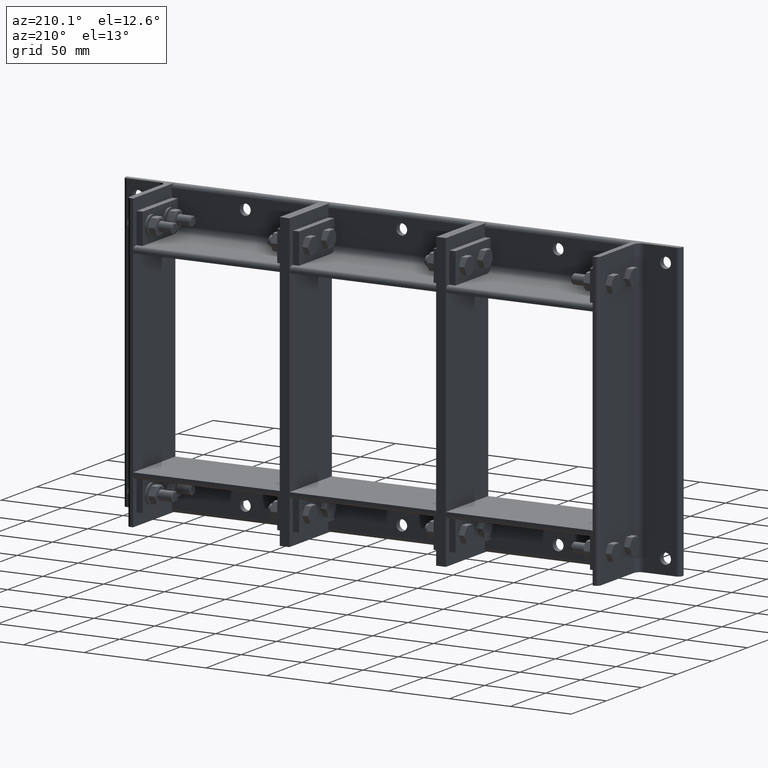
[diagram: clean part render]
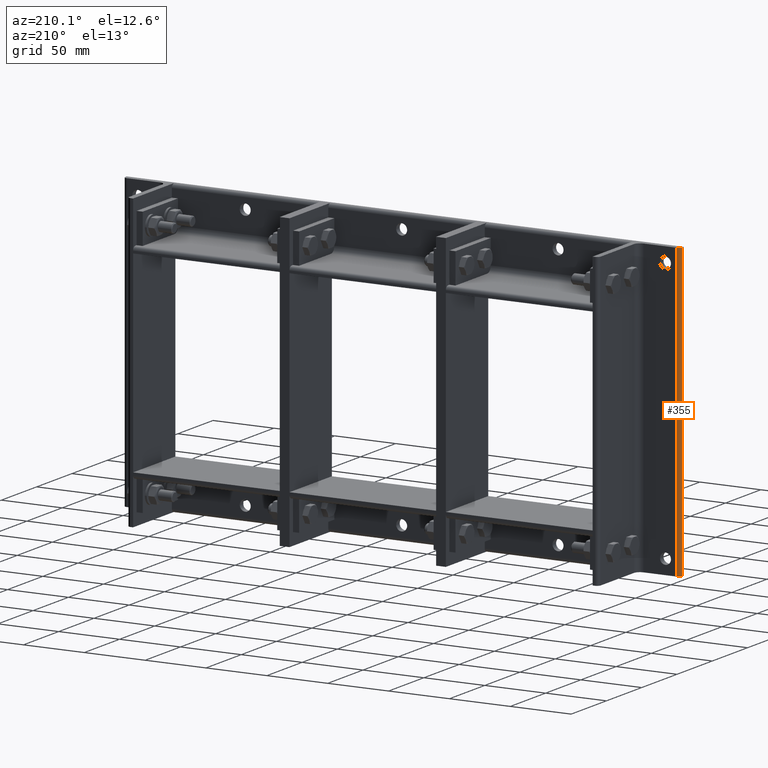
[diagram: same view with one face highlighted and labeled with its STEP entity id]
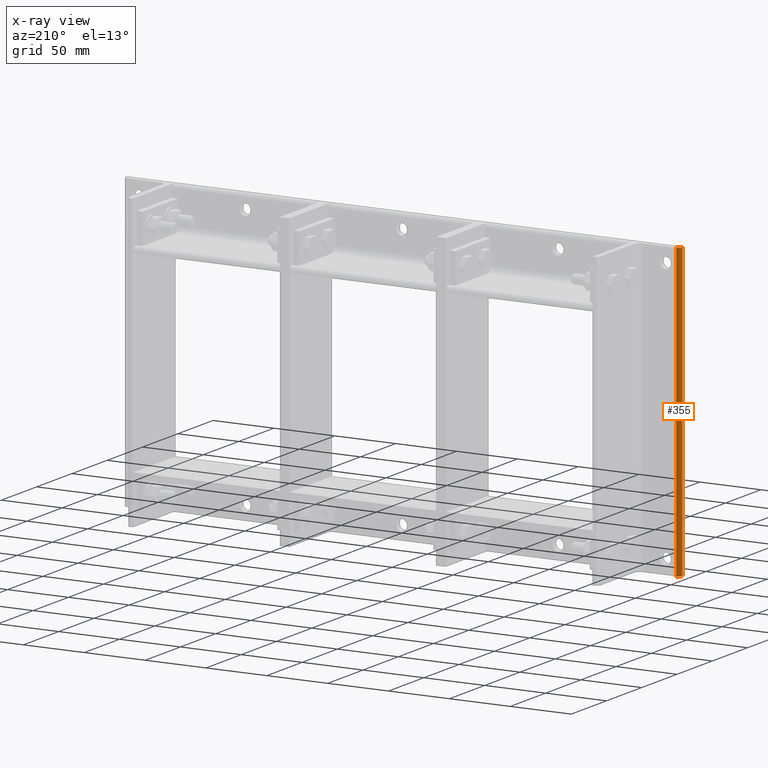
[diagram: x-ray of the same camera — body ghosted, the highlighted face saturated]
A machine part, auxiliary view. The second image highlights one B-rep face of the part: STEP entity #355.
The next image is the same camera in x-ray: the body ghosted, the highlighted face saturated — about 0% of this face is hidden behind the body in this view.
In plain terms, the highlighted cylindrical surface (edge-blend (fillet) strip) has radius 3 mm, axis along (0, -0, -1).
Its self-contained STEP definition (entity closure, byte-faithful):
#314=CARTESIAN_POINT('',(37.0,1.999999999999999,0.0));
#315=DIRECTION('',(0.0,0.0,1.0));
#316=DIRECTION('',(0.707106781186547,0.707106781186548,0.0));
#317=AXIS2_PLACEMENT_3D('',#314,#315,#316);
#318=CYLINDRICAL_SURFACE('',#317,3.0);
#319=CARTESIAN_POINT('',(37.0,4.999999999999999,239.50000000000003));
#320=VERTEX_POINT('',#319);
#321=CARTESIAN_POINT('',(40.0,1.999999999999999,239.50000000000003));
#322=VERTEX_POINT('',#321);
#323=CARTESIAN_POINT('',(37.0,1.999999999999999,239.50000000000003));
#324=DIRECTION('',(0.0,0.0,-1.0));
#325=DIRECTION('',(0.707106781186547,0.707106781186548,0.0));
#326=AXIS2_PLACEMENT_3D('',#323,#324,#325);
#327=CIRCLE('',#326,3.0);
#328=EDGE_CURVE('',#320,#322,#327,.T.);
#329=ORIENTED_EDGE('',*,*,#328,.T.);
#330=CARTESIAN_POINT('',(40.0,1.999999999999999,0.0));
#331=VERTEX_POINT('',#330);
#332=CARTESIAN_POINT('',(40.0,1.999999999999999,239.50000000000003));
#333=DIRECTION('',(0.0,0.0,-1.0));
#334=VECTOR('',#333,239.50000000000003);
#335=LINE('',#332,#334);
#336=EDGE_CURVE('',#322,#331,#335,.T.);
#337=ORIENTED_EDGE('',*,*,#336,.T.);
#338=CARTESIAN_POINT('',(37.0,4.999999999999999,0.0));
#339=VERTEX_POINT('',#338);
#340=CARTESIAN_POINT('',(37.0,1.999999999999999,0.0));
#341=DIRECTION('',(0.0,0.0,1.0));
#342=DIRECTION('',(0.707106781186547,0.707106781186548,0.0));
#343=AXIS2_PLACEMENT_3D('',#340,#341,#342);
#344=CIRCLE('',#343,3.0);
#345=EDGE_CURVE('',#331,#339,#344,.T.);
#346=ORIENTED_EDGE('',*,*,#345,.T.);
#347=CARTESIAN_POINT('',(37.0,5.0,0.0));
#348=DIRECTION('',(0.0,0.0,1.0));
#349=VECTOR('',#348,239.50000000000003);
#350=LINE('',#347,#349);
#351=EDGE_CURVE('',#339,#320,#350,.T.);
#352=ORIENTED_EDGE('',*,*,#351,.T.);
#353=EDGE_LOOP('',(#329,#337,#346,#352));
#354=FACE_OUTER_BOUND('',#353,.T.);
#355=ADVANCED_FACE('',(#354),#318,.T.);